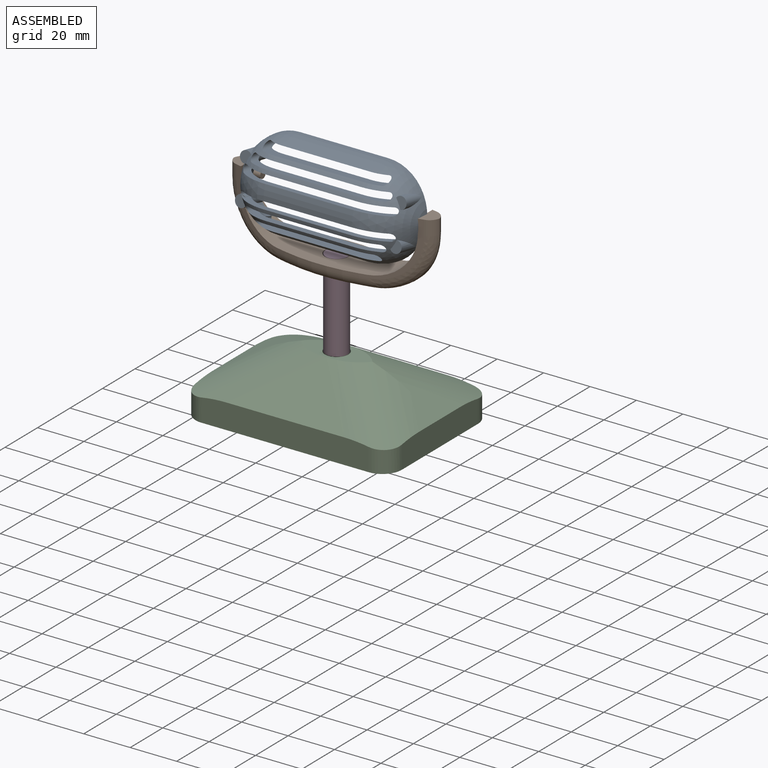
[diagram: assembled view]
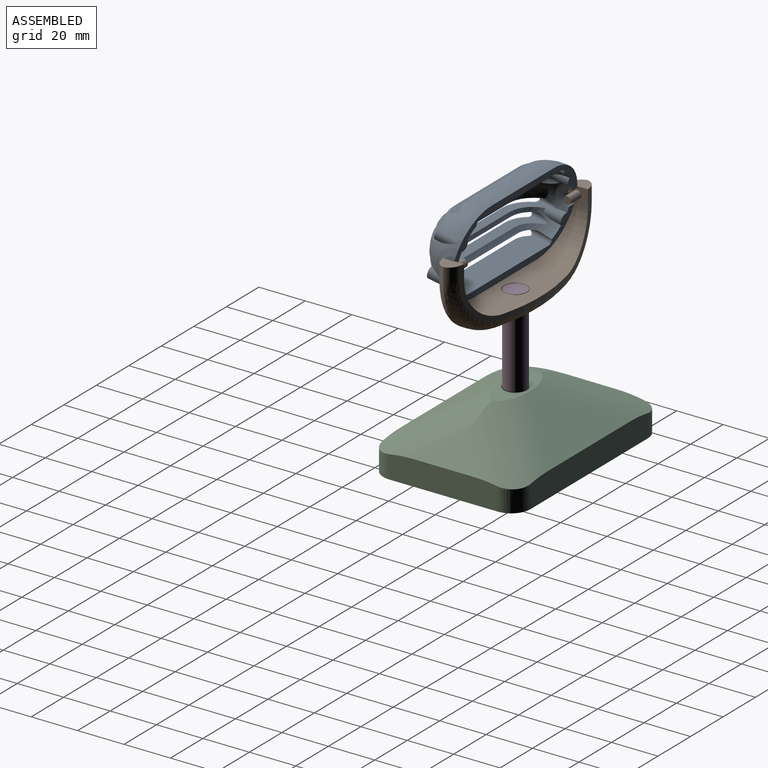
[diagram: assembled view, second angle]
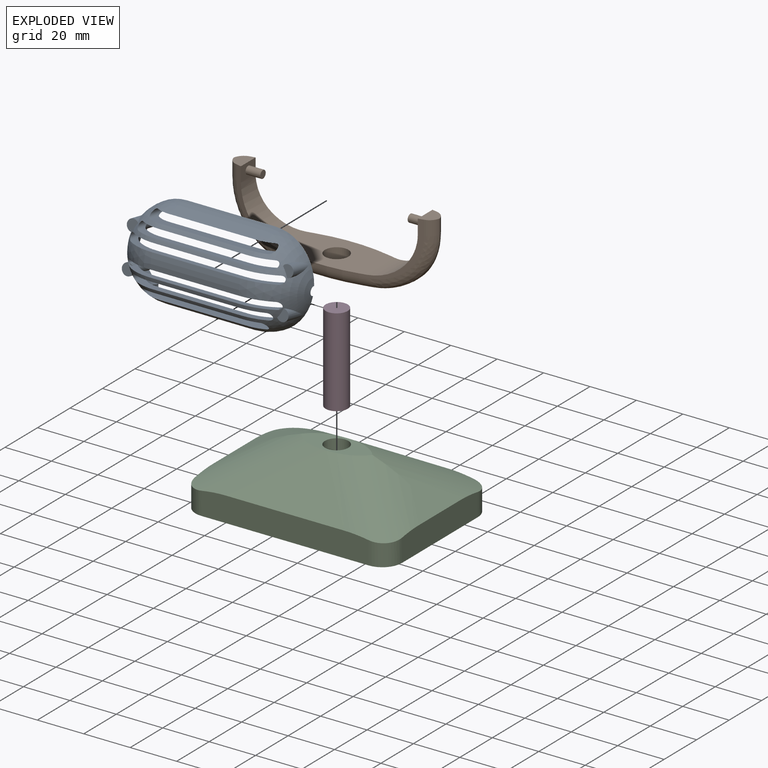
[diagram: exploded view]
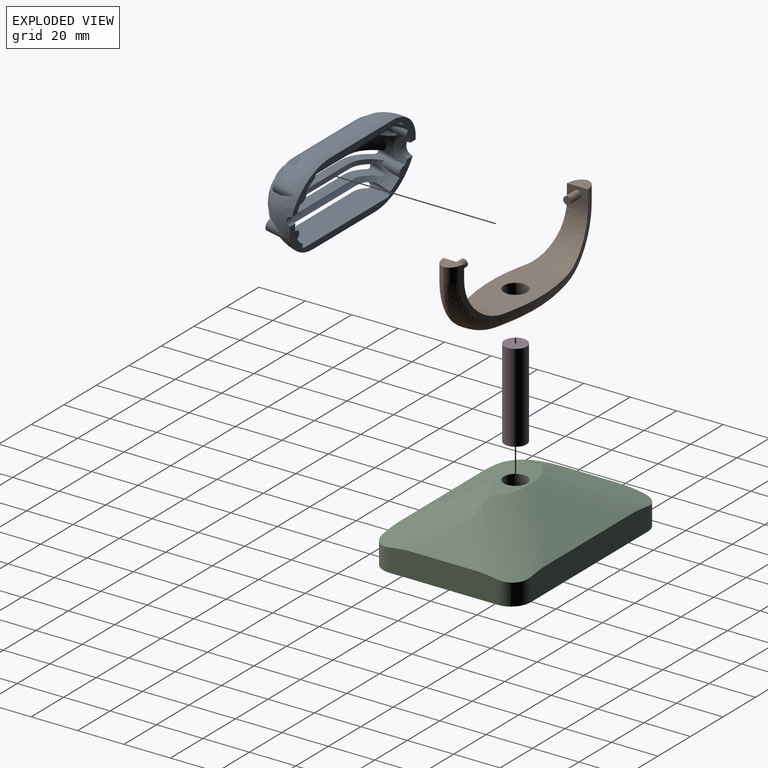
[diagram: exploded view, second angle]
ASSEMBLY  parts=4 mates=4
PART A: 64 faces, bbox 19.1x38.1x75.8 mm
  f0: sphere r=15.88mm, area 170.6mm2, adj f4,f7,f15,f19,f28,f45,f54,f59
  f1: sphere r=15.88mm, area 88.6mm2, adj f3,f16,f17,f21,f22,f23,f26,f27
  f2: sphere r=19.05mm, area 772.9mm2, adj f3,f4,f5,f7,f19,f21,f22,f23
  f3: plane 63.5x10.47mm, normal (0,-1,0), area 228.1mm2, adj f1,f2,f4,f9,f10,f11,f17,f42
  f4: cylinder r=1.59mm len=9.1mm, axis (1,0,0), area 21.7mm2, adj f0,f2,f3,f19,f58,f59
  f5: plane 63.5x10.47mm, normal (0,1,0), area 228.1mm2, adj f2,f6,f7,f10,f12,f13,f18,f43
  f6: sphere r=15.88mm, area 88.6mm2, adj f5,f14,f18,f30,f31,f32,f35,f36
  f7: cylinder r=1.59mm len=9.1mm, axis (1,0,0), area 21.7mm2, adj f0,f2,f5,f28,f54,f55
  f8: sphere r=15.88mm, area 183mm2, adj f11,f13,f15,f19,f28,f44,f46,f51
  f9: sphere r=15.88mm, area 88.6mm2, adj f3,f16,f17,f20,f21,f22,f24,f26
  f10: sphere r=19.05mm, area 785.4mm2, adj f3,f5,f11,f13,f19,f20,f21,f22
  f11: cylinder r=1.59mm len=9.1mm, axis (1,0,0), area 21.7mm2, adj f3,f8,f10,f19,f50,f51
  f12: sphere r=15.88mm, area 88.6mm2, adj f5,f14,f18,f29,f31,f32,f33,f35
  f13: cylinder r=1.59mm len=9.1mm, axis (1,0,0), area 21.7mm2, adj f5,f8,f10,f28,f46,f47
  f14: cylinder r=15.88mm len=38.1mm, axis (0,0,1), area 91.9mm2, adj f6,f12,f31,f35
  f15: cylinder r=15.88mm len=38.1mm, axis (0,0,1), area 243.6mm2, adj f0,f8,f19,f28
  f16: cylinder r=15.88mm len=38.1mm, axis (0,0,1), area 91.9mm2, adj f1,f9,f22,f26
  f17: cylinder r=15.88mm len=38.1mm, axis (0,0,1), area 67.8mm2, adj f1,f3,f9,f21
  f18: cylinder r=15.88mm len=38.1mm, axis (0,0,1), area 67.8mm2, adj f5,f6,f12,f32
  f19: plane 63.5x9.8mm, normal (0,1,0), area 215.6mm2, adj f0,f2,f4,f8,f10,f11,f15,f39
  f20: cylinder r=1.59mm len=9.44mm, axis (1,0,0), area 29mm2, adj f9,f10,f21,f22
  f21: plane 57.15x7.4mm, normal (0,1,0), area 209.3mm2, adj f1,f2,f9,f10,f17,f20,f23,f42
  f22: plane 57.15x9.32mm, normal (0,-1,0), area 245.7mm2, adj f1,f2,f9,f10,f16,f20,f23,f40
  f23: cylinder r=1.59mm len=9.44mm, axis (1,0,0), area 29mm2, adj f1,f2,f21,f22
  f24: cylinder r=1.59mm len=12.7mm, axis (1,0,0), area 39.9mm2, adj f9,f10,f25,f26,f62
  f25: plane 50.8x10.53mm, normal (0,-1,0), area 526.3mm2, adj f2,f10,f24,f27,f41,f62
  f26: plane 50.8x7.1mm, normal (0,1,0), area 240.9mm2, adj f1,f2,f9,f10,f16,f24,f27,f40
  f27: cylinder r=1.59mm len=12.7mm, axis (1,0,0), area 39.9mm2, adj f1,f2,f25,f26,f62
  f28: plane 63.5x9.8mm, normal (0,-1,0), area 215.6mm2, adj f0,f2,f7,f8,f10,f13,f15,f39
  f29: cylinder r=1.59mm len=9.44mm, axis (1,0,0), area 29mm2, adj f10,f12,f31,f32
  f30: cylinder r=1.59mm len=9.44mm, axis (1,0,0), area 29mm2, adj f2,f6,f31,f32
  f31: plane 57.15x9.32mm, normal (0,1,0), area 245.7mm2, adj f2,f6,f10,f12,f14,f29,f30,f37
  f32: plane 57.15x7.4mm, normal (0,-1,0), area 209.3mm2, adj f2,f6,f10,f12,f18,f29,f30,f43
  f33: cylinder r=1.59mm len=12.7mm, axis (1,0,0), area 39.9mm2, adj f10,f12,f34,f35,f63
  f34: plane 50.8x10.53mm, normal (0,1,0), area 526.3mm2, adj f2,f10,f33,f36,f38,f63
  f35: plane 50.8x7.1mm, normal (0,-1,0), area 240.9mm2, adj f2,f6,f10,f12,f14,f33,f36,f37
  f36: cylinder r=1.59mm len=12.7mm, axis (1,0,0), area 39.9mm2, adj f2,f6,f34,f35,f63
  f37: cylinder r=19.05mm len=38.1mm, axis (0,0,1), area 77.6mm2, adj f2,f10,f31,f35
  f38: cylinder r=19.05mm len=38.1mm, axis (0,0,1), area 425.1mm2, adj f2,f10,f34,f63
  f39: cylinder r=19.05mm len=38.1mm, axis (0,0,1), area 243.1mm2, adj f2,f10,f19,f28
  f40: cylinder r=19.05mm len=38.1mm, axis (0,0,1), area 77.6mm2, adj f2,f10,f22,f26
  f41: cylinder r=19.05mm len=38.1mm, axis (0,0,1), area 425.1mm2, adj f2,f10,f25,f62
  f42: cylinder r=19.05mm len=38.1mm, axis (0,0,1), area 65.3mm2, adj f2,f3,f10,f21
  f43: cylinder r=19.05mm len=38.1mm, axis (0,0,1), area 65.3mm2, adj f2,f5,f10,f32
  f44: cylinder r=1.9mm len=3.8mm, axis (0,0,1), area 19.1mm2, adj f8,f10,f62,f63
  f45: cylinder r=3.38mm len=6.76mm, axis (0,0,-1), area 34.4mm2, adj f0,f2,f62,f63
  f46: cylinder r=2.54mm len=11.11mm, axis (-1,0,0), area 46.5mm2, adj f5,f8,f12,f13,f47,f63
  f47: plane 1.58x0.75mm, normal (1,0,0), area 0.5mm2, adj f5,f13,f46
  f48: plane 5.08x4.65mm, normal (1,0,0), area 15.2mm2, adj f10,f49
  f49: cylinder r=2.54mm len=9.46mm, axis (-1,0,0), area 49mm2, adj f10,f48
  f50: plane 1.58x0.75mm, normal (1,0,0), area 0.5mm2, adj f3,f11,f51
  f51: cylinder r=2.54mm len=11.11mm, axis (-1,0,0), area 46.5mm2, adj f3,f8,f9,f11,f50,f62
  f52: cylinder r=2.54mm len=9.46mm, axis (-1,0,0), area 49mm2, adj f10,f53
  f53: plane 5.08x4.65mm, normal (1,0,0), area 15.2mm2, adj f10,f52
  f54: cylinder r=2.54mm len=11.11mm, axis (-1,0,0), area 46.5mm2, adj f0,f5,f6,f7,f55,f63
  f55: plane 1.58x0.75mm, normal (1,0,0), area 0.5mm2, adj f5,f7,f54
  f56: plane 5.08x4.65mm, normal (1,0,0), area 15.2mm2, adj f2,f57
  f57: cylinder r=2.54mm len=9.46mm, axis (-1,0,0), area 49mm2, adj f2,f56
  f58: plane 1.58x0.75mm, normal (1,0,0), area 0.5mm2, adj f3,f4,f59
  f59: cylinder r=2.54mm len=11.11mm, axis (-1,0,0), area 46.5mm2, adj f0,f1,f3,f4,f58,f62
  f60: cylinder r=2.54mm len=9.46mm, axis (-1,0,0), area 49mm2, adj f2,f61
  f61: plane 5.08x4.65mm, normal (1,0,0), area 15.2mm2, adj f2,f60
  f62: plane 75.8x17.15mm, normal (-1,0,0), area 282.5mm2, adj f0,f1,f2,f8,f9,f10,f24,f25
  f63: plane 75.8x17.15mm, normal (-1,0,0), area 282.5mm2, adj f0,f2,f6,f8,f10,f12,f33,f34
PART B: 35 faces, bbox 90.6x36.2x33.5 mm
  f0: plane 9.07x6.26mm, normal (0,0,1), area 42.4mm2, adj f8,f12,f15,f32,f34
  f1: cylinder r=25.4mm len=19.96mm, axis (0,1,0), area 78.6mm2, adj f9,f30,f33
  f2: cylinder r=25.4mm len=19.97mm, axis (0,1,0), area 78.6mm2, adj f9,f22,f25
  f3: plane 9.07x6.26mm, normal (0,0,1), area 42.4mm2, adj f4,f10,f14,f21,f23
  f4: plane 9.07x6.35mm, normal (-1,0,0), area 48.6mm2, adj f3,f5,f10,f14,f17
  f5: cylinder r=19.05mm len=19.05mm, axis (0,1,0), area 393.6mm2, adj f4,f6,f10,f14
  f6: plane 38.1x21.94mm, normal (0,0,1), area 695.3mm2, adj f5,f7,f10,f11,f12,f13,f14,f15
  f7: cylinder r=19.05mm len=19.05mm, axis (0,1,0), area 393.6mm2, adj f6,f8,f12,f15
  f8: plane 9.07x6.35mm, normal (1,0,0), area 48.6mm2, adj f0,f7,f12,f15,f19
  f9: plane 38.1x11.78mm, normal (0,0,-1), area 304.2mm2, adj f1,f2,f16,f24,f26,f27,f28,f29
  f10: plane 28.39x26.19mm, normal (0.21,0.98,0), area 81.4mm2, adj f3,f4,f5,f6,f11,f23,f25,f27
  f11: cylinder r=76.2mm len=31.93mm, axis (0,0,-1), area 40.9mm2, adj f6,f10,f12,f29
  f12: plane 28.39x26.19mm, normal (-0.21,0.98,0), area 81.4mm2, adj f0,f6,f7,f8,f11,f31,f33,f34
  f13: cylinder r=76.2mm len=31.93mm, axis (0,0,-1), area 40.9mm2, adj f6,f14,f15,f26
  f14: plane 28.39x26.19mm, normal (0.21,-0.98,0), area 81.4mm2, adj f3,f4,f5,f6,f13,f21,f22,f24
  f15: plane 28.39x26.19mm, normal (-0.21,-0.98,0), area 81.4mm2, adj f0,f6,f7,f8,f13,f28,f30,f32
  f16: cylinder r=5.04mm len=10.08mm, axis (0,0,1), area 201.2mm2, adj f6,f9
  f17: cylinder r=1.69mm len=6.35mm, axis (1,0,0), area 67.4mm2, adj f4,f18
  f18: plane 3.38x3.38mm, normal (-1,0,0), area 9mm2, adj f17
  f19: cylinder r=1.69mm len=6.35mm, axis (-1,0,0), area 67.4mm2, adj f8,f20
  f20: plane 3.38x3.38mm, normal (1,0,0), area 9mm2, adj f19
  f21: cylinder r=5.08mm len=6.35mm, axis (0,0,-1), area 37.9mm2, adj f3,f14,f22,f23
  f22: bspline ~25.4x25.4mm, area 262.9mm2, adj f2,f14,f21,f24,f25
  f23: cylinder r=5.08mm len=6.35mm, axis (0,0,1), area 37.9mm2, adj f3,f10,f21,f25
  f24: cylinder r=5.08mm len=5.86mm, axis (0.98,0.21,0), area 33.9mm2, adj f9,f14,f22,f26
  f25: bspline ~25.4x25.4mm, area 262.9mm2, adj f2,f10,f22,f23,f27
  f26: torus R=71.12mm, axis (0,0,1), area 250.5mm2, adj f9,f13,f24,f28
  f27: cylinder r=5.08mm len=5.86mm, axis (-0.98,0.21,0), area 33.9mm2, adj f9,f10,f25,f29
  f28: cylinder r=5.08mm len=5.86mm, axis (0.98,-0.21,0), area 33.9mm2, adj f9,f15,f26,f30
  f29: torus R=71.12mm, axis (0,0,1), area 250.5mm2, adj f9,f11,f27,f31
  f30: bspline ~25.4x25.4mm, area 262.9mm2, adj f1,f15,f28,f32,f33
  f31: cylinder r=5.08mm len=5.86mm, axis (-0.98,-0.21,0), area 33.9mm2, adj f9,f12,f29,f33
  f32: cylinder r=5.08mm len=6.35mm, axis (0,0,1), area 37.9mm2, adj f0,f15,f30,f34
  f33: bspline ~25.4x25.4mm, area 262.9mm2, adj f1,f12,f30,f31,f34
  f34: cylinder r=5.08mm len=6.35mm, axis (0,0,1), area 37.9mm2, adj f0,f12,f32,f33
PART C: 31 faces, bbox 101.7x76.3x27.7 mm
  f0: plane 88.9x63.5mm, normal (0,0,-1), area 688.1mm2, adj f4,f5,f6,f7,f16,f17,f18,f19
  f1: plane 30.76x12.7mm, normal (0,0,1), area 203.7mm2, adj f11,f23,f24,f25,f26
  f2: plane 50.8x25.4mm, normal (0,0.5,0.87), area 745mm2, adj f7,f24,f26
  f3: plane 50.8x25.4mm, normal (0,-0.5,0.87), area 745mm2, adj f6,f23,f25
  f4: plane 46.74x10.74mm, normal (-1,0,0), area 495.1mm2, adj f0,f10,f23,f24,f29,f30
  f5: plane 46.74x10.74mm, normal (1,0,0), area 495.1mm2, adj f0,f9,f25,f26,f27,f28
  f6: plane 72.14x10.74mm, normal (0,-1,0), area 767.7mm2, adj f0,f3,f23,f25,f27,f29
  f7: plane 72.14x10.74mm, normal (0,1,0), area 767.7mm2, adj f0,f2,f24,f26,f28,f30
  f8: plane 15.16x15.16mm, normal (0,0,-1), area 100.7mm2, adj f11,f22
  f9: plane 25.4x12.7mm, normal (0.5,0,0.87), area 186.2mm2, adj f5,f25,f26
  f10: plane 25.4x12.7mm, normal (-0.5,0,0.87), area 186.2mm2, adj f4,f23,f24
  f11: cylinder r=5.04mm len=25.4mm, axis (0,0,1), area 804.7mm2, adj f1,f8
  f12: plane 13.34x11.34mm, normal (0,0,-1), area 131.2mm2, adj f14,f15,f21,f22
  f13: plane 13.34x11.34mm, normal (0,0,-1), area 131.2mm2, adj f14,f15,f20,f22
  f14: plane 83.82x23.54mm, normal (0,-0.5,-0.87), area 1623.3mm2, adj f12,f13,f19,f20,f21,f22
  f15: plane 83.82x23.54mm, normal (0,0.5,-0.87), area 1623.3mm2, adj f12,f13,f18,f20,f21,f22
  f16: plane 58.42x9.27mm, normal (1,0,0), area 541.5mm2, adj f0,f18,f19,f21
  f17: plane 58.42x9.27mm, normal (-1,0,0), area 541.5mm2, adj f0,f18,f19,f20
  f18: plane 83.82x9.27mm, normal (0,1,0), area 776.9mm2, adj f0,f15,f16,f17
  f19: plane 83.82x9.27mm, normal (0,-1,0), area 776.9mm2, adj f0,f14,f16,f17
  f20: plane 58.42x23.54mm, normal (-0.5,0,-0.87), area 948.1mm2, adj f13,f14,f15,f17
  f21: plane 58.42x23.54mm, normal (0.5,0,-0.87), area 948.1mm2, adj f12,f14,f15,f16
  f22: cylinder r=7.58mm len=22.86mm, axis (0,0,1), area 1073mm2, adj f8,f12,f13,f14,f15
  f23: cylinder r=38.1mm len=50.86mm, axis (-0.65,-0.65,-0.38), area 1015.6mm2, adj f1,f3,f4,f6,f10,f24,f29
  f24: cylinder r=38.1mm len=50.86mm, axis (0.65,-0.65,0.38), area 1015.6mm2, adj f1,f2,f4,f7,f10,f23,f30
  f25: cylinder r=38.1mm len=50.86mm, axis (-0.65,0.65,0.38), area 1015.6mm2, adj f1,f3,f5,f6,f9,f26,f27
  f26: cylinder r=38.1mm len=50.86mm, axis (0.65,0.65,-0.38), area 1015.6mm2, adj f1,f2,f5,f7,f9,f25,f28
  f27: cylinder r=8.38mm len=9.81mm, axis (0,0,-1), area 124.7mm2, adj f0,f5,f6,f25
  f28: cylinder r=8.38mm len=9.81mm, axis (0,0,1), area 124.7mm2, adj f0,f5,f7,f26
  f29: cylinder r=8.38mm len=9.81mm, axis (0,0,1), area 124.7mm2, adj f0,f4,f6,f23
  f30: cylinder r=8.38mm len=9.81mm, axis (0,0,-1), area 124.7mm2, adj f0,f4,f7,f24
PART D: 3 faces, bbox 9.5x9.5x38.1 mm
  f0: cylinder r=4.76mm len=38.1mm, axis (0,0,-1), area 1140.1mm2, adj f1,f2
  f1: plane 9.53x9.53mm, normal (0,0,1), area 71.3mm2, adj f0
  f2: plane 9.53x9.53mm, normal (0,0,-1), area 71.3mm2, adj f0
PLACE A rot(axis=(0.54,-0.65,-0.54),113.9deg) t=(-9.77,-3,-12.48)mm
PLACE B t=(-35.95,13.29,9.41)mm fixed
PLACE C t=(-35.95,-31.16,-79.49)mm
PLACE D t=(8.5,0.59,-54.09)mm
MATE cylindrical D.f0 <-> B.f16  axis (0,0,1) through (8.5,0.59,-15.99)mm
MATE cylindrical A.f44 <-> B.f19  axis (1,0,0) through (-28.52,0.59,6.23)mm
MATE parallel D.f0 <-> B.f16  axis (0,0,1) through (8.5,0.59,-15.99)mm
MATE cylindrical C.f11 <-> D.f0  axis (0,0,1) through (8.5,0.59,-54.09)mm
